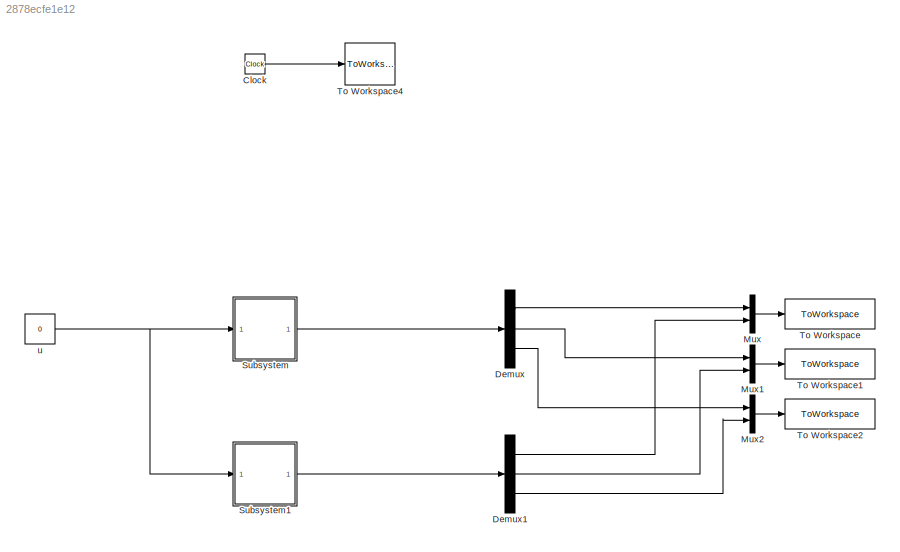
MODEL slx_2878ecfe1e12
KIND model
CONFIG AbsTol = auto
CONFIG EnableMultiTasking = off
CONFIG FixedStep = auto
CONFIG MaxStep = my_step
CONFIG MinStep = auto
CONFIG RelTol = 1e-3
CONFIG SampleTimeConstraint = Unconstrained
CONFIG Solver = ode45
CONFIG SolverName = ode45
CONFIG StartTime = 0.0
CONFIG StopTime = Tfin
BLOCK [Clock] Clock
BLOCK [Demux] Demux
  DisplayOption = bar
  Outputs = 3
  Ports = [1, 3]
BLOCK [Demux] Demux1
  DisplayOption = bar
  Outputs = 3
  Ports = [1, 3]
BLOCK [Mux] Mux
  DisplayOption = bar
  Inputs = 2
  Ports = [2, 1]
BLOCK [Mux] Mux1
  DisplayOption = bar
  Inputs = 2
  Ports = [2, 1]
BLOCK [Mux] Mux2
  DisplayOption = bar
  Inputs = 2
  Ports = [2, 1]
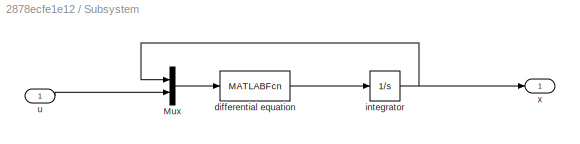
BLOCK [SubSystem] Subsystem
  Ports = [1, 1]
  RequestExecContextInheritance = off
BLOCK [Mux] Subsystem/Mux
  DisplayOption = bar
  Inputs = 2
  Ports = [2, 1]
BLOCK [MATLABFcn] Subsystem/differential equation
  MATLABFcn = Chua_circ
  Ports = [1, 1]
BLOCK [Integrator] Subsystem/integrator
  InitialCondition = x0
  Ports = [1, 1]
BLOCK [Inport] Subsystem/u
  IconDisplay = Port number
BLOCK [Outport] Subsystem/x
  IconDisplay = Port number
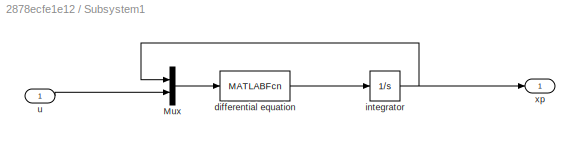
BLOCK [SubSystem] Subsystem1
  Ports = [1, 1]
  RequestExecContextInheritance = off
BLOCK [Mux] Subsystem1/Mux
  DisplayOption = bar
  Inputs = 2
  Ports = [2, 1]
BLOCK [MATLABFcn] Subsystem1/differential equation
  MATLABFcn = Chua_circ
  Ports = [1, 1]
BLOCK [Integrator] Subsystem1/integrator
  InitialCondition = xp0
  Ports = [1, 1]
BLOCK [Inport] Subsystem1/u
  IconDisplay = Port number
BLOCK [Outport] Subsystem1/xp
  IconDisplay = Port number
BLOCK [ToWorkspace] To Workspace
  MaxDataPoints = inf
  Ports = [1]
  SampleTime = -1
  VariableName = x1_out
BLOCK [ToWorkspace] To Workspace1
  MaxDataPoints = inf
  Ports = [1]
  SampleTime = -1
  VariableName = x2_out
BLOCK [ToWorkspace] To Workspace2
  MaxDataPoints = inf
  Ports = [1]
  SampleTime = -1
  VariableName = x3_out
BLOCK [ToWorkspace] To Workspace4
  MaxDataPoints = inf
  Ports = [1]
  SampleTime = -1
  VariableName = time
BLOCK [Constant] u
  Value = 0
LINE Clock:1 -> To Workspace4:1
LINE Demux1:1 -> Mux:2
LINE Demux1:2 -> Mux1:2
LINE Demux1:3 -> Mux2:2
LINE Demux:1 -> Mux:1
LINE Demux:2 -> Mux1:1
LINE Demux:3 -> Mux2:1
LINE Mux1:1 -> To Workspace1:1
LINE Mux2:1 -> To Workspace2:1
LINE Mux:1 -> To Workspace:1
LINE Subsystem/Mux:1 -> Subsystem/differential equation:1
LINE Subsystem/differential equation:1 -> Subsystem/integrator:1
NET Subsystem/integrator:1 -> Subsystem/Mux:1, Subsystem/x:1
LINE Subsystem/u:1 -> Subsystem/Mux:2
LINE Subsystem1/Mux:1 -> Subsystem1/differential equation:1
LINE Subsystem1/differential equation:1 -> Subsystem1/integrator:1
NET Subsystem1/integrator:1 -> Subsystem1/Mux:1, Subsystem1/xp:1
LINE Subsystem1/u:1 -> Subsystem1/Mux:2
LINE Subsystem1:1 -> Demux1:1
LINE Subsystem:1 -> Demux:1
NET u:1 -> Subsystem1:1, Subsystem:1
note: NET lines group one-source signal fan-out (src -> all destinations, sorted); 1:1 wires keep LINE
